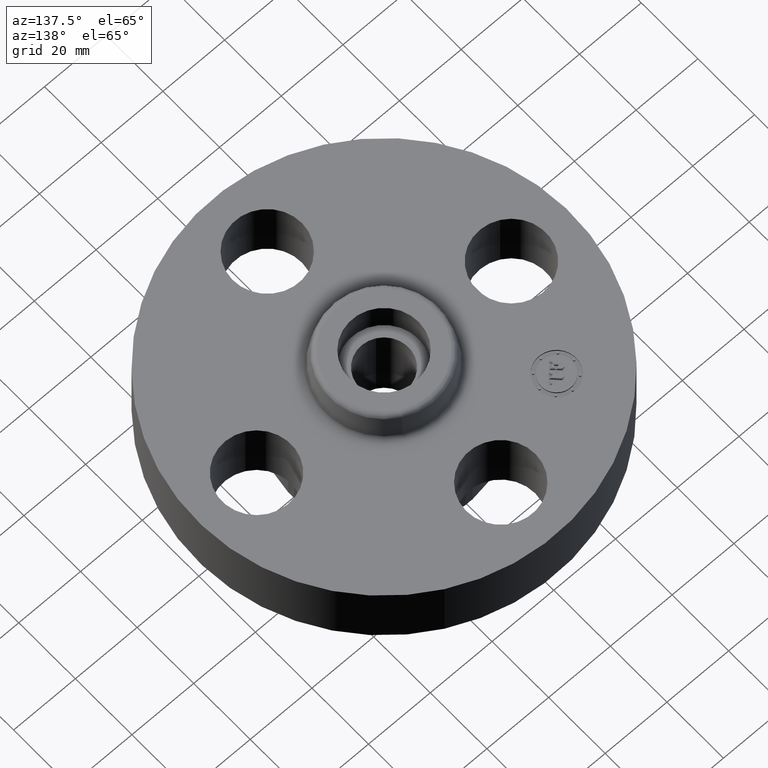
[diagram: clean part render]
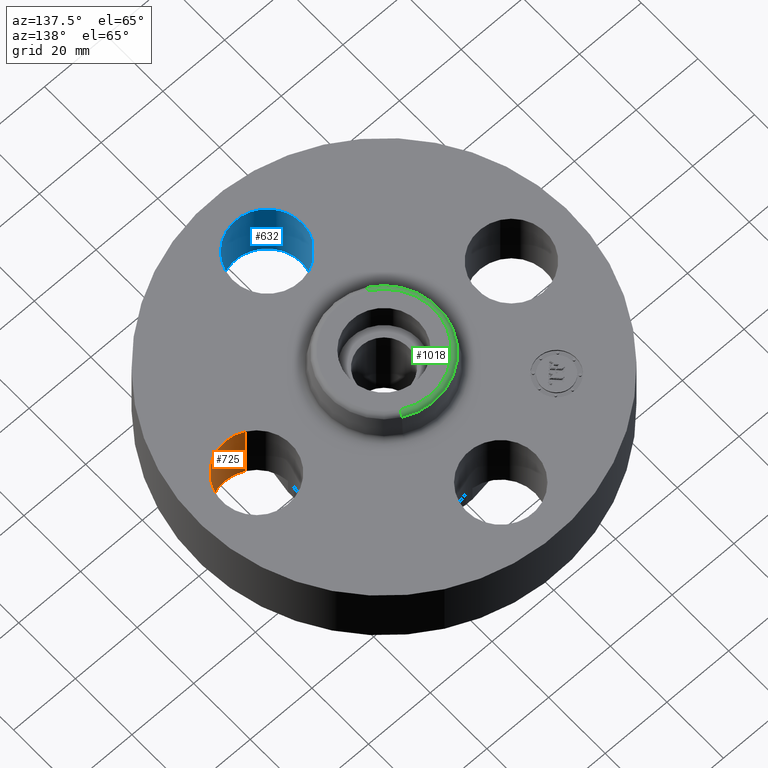
[diagram: same view with three faces highlighted in distinct colors, each labeled with its STEP entity id]
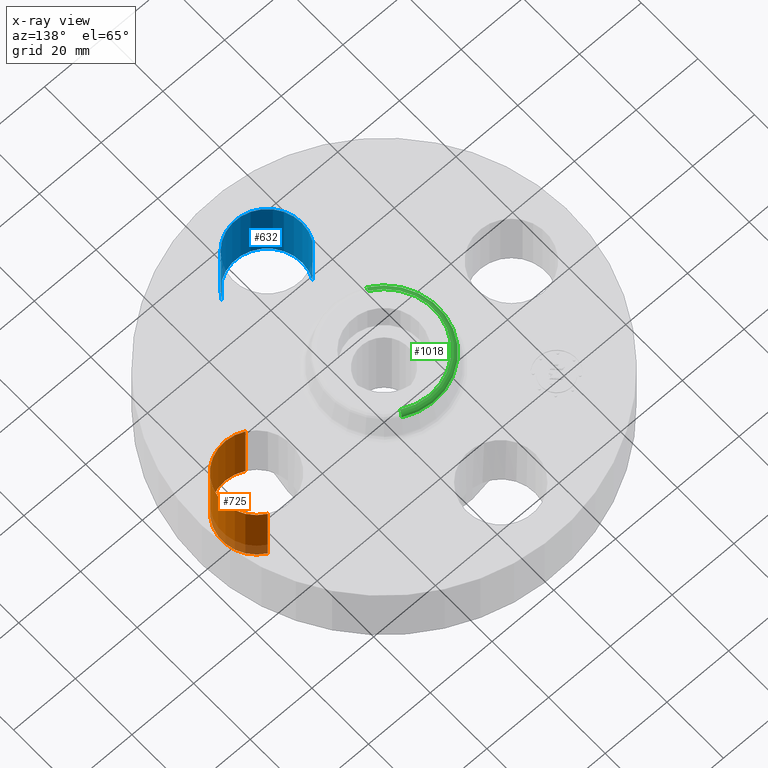
[diagram: x-ray of the same camera — body ghosted, the three highlighted faces saturated]
A machine part, auxiliary view with three faces highlighted in distinct colors.
The next image is the same camera in x-ray (body ghosted, the three faces saturated) — at least one of them is partly hidden behind the body in this view.
Their STEP definitions:

[orange] entity #725 — the highlighted cylindrical surface (partial cylindrical patch) has radius 11.176 mm, axis along (0, -0, -1).
#471=AXIS2_PLACEMENT_3D('Circle Axis2P3D',#469,#470,$) ;
#698=AXIS2_PLACEMENT_3D('Cylinder Axis2P3D',#695,#696,#697) ;
#716=AXIS2_PLACEMENT_3D('Circle Axis2P3D',#714,#715,$) ;
#466=CARTESIAN_POINT('Vertex',(1.41405276302,-0.386136327233,0.)) ;
#469=CARTESIAN_POINT('Axis2P3D Location',(1.62500000001,-2.79741234551E-016,0.)) ;
#473=CARTESIAN_POINT('Vertex',(1.83594723699,0.386136327233,0.)) ;
#695=CARTESIAN_POINT('Axis2P3D Location',(1.62500000001,-1.8023868212E-016,0.87606299213)) ;
#700=CARTESIAN_POINT('Line Origine',(1.83594723699,0.386136327233,0.315000000001)) ;
#704=CARTESIAN_POINT('Vertex',(1.83594723699,0.386136327233,0.880000000004)) ;
#707=CARTESIAN_POINT('Line Origine',(1.41405276302,-0.386136327233,0.315000000001)) ;
#711=CARTESIAN_POINT('Vertex',(1.41405276302,-0.386136327233,0.880000000004)) ;
#714=CARTESIAN_POINT('Axis2P3D Location',(1.62500000001,-1.8023868212E-016,0.880000000004)) ;
#470=DIRECTION('Axis2P3D Direction',(0.,0.,-0.0393700787402)) ;
#696=DIRECTION('Axis2P3D Direction',(0.,-0.,-0.0393700787402)) ;
#697=DIRECTION('Axis2P3D XDirection',(-0.0188750212049,-0.0345504945626,0.)) ;
#701=DIRECTION('Vector Direction',(0.,0.,-0.0393700787402)) ;
#708=DIRECTION('Vector Direction',(0.,0.,-0.0393700787402)) ;
#715=DIRECTION('Axis2P3D Direction',(0.,-0.,-0.0393700787402)) ;
#702=VECTOR('Line Direction',#701,0.0393700787402) ;
#709=VECTOR('Line Direction',#708,0.0393700787402) ;
#720=ORIENTED_EDGE('',*,*,#706,.F.) ;
#721=ORIENTED_EDGE('',*,*,#475,.T.) ;
#722=ORIENTED_EDGE('',*,*,#713,.T.) ;
#723=ORIENTED_EDGE('',*,*,#718,.F.) ;
#725=ADVANCED_FACE('PartBody',(#724),#699,.F.) ;
#472=CIRCLE('generated circle',#471,0.440000000002) ;
#717=CIRCLE('generated circle',#716,0.440000000002) ;
#699=CYLINDRICAL_SURFACE('generated cylinder',#698,0.440000000002) ;
#475=EDGE_CURVE('',#474,#467,#472,.T.) ;
#706=EDGE_CURVE('',#474,#705,#703,.F.) ;
#713=EDGE_CURVE('',#467,#712,#710,.F.) ;
#718=EDGE_CURVE('',#705,#712,#717,.T.) ;
#719=EDGE_LOOP('',(#720,#721,#722,#723)) ;
#724=FACE_OUTER_BOUND('',#719,.T.) ;
#703=LINE('Line',#700,#702) ;
#710=LINE('Line',#707,#709) ;
#467=VERTEX_POINT('',#466) ;
#474=VERTEX_POINT('',#473) ;
#705=VERTEX_POINT('',#704) ;
#712=VERTEX_POINT('',#711) ;

[blue] entity #632 — the highlighted cylindrical surface (partial cylindrical patch) has radius 11.176 mm, axis along (-0, 0, -1).
#528=AXIS2_PLACEMENT_3D('Circle Axis2P3D',#526,#527,$) ;
#605=AXIS2_PLACEMENT_3D('Cylinder Axis2P3D',#602,#603,#604) ;
#623=AXIS2_PLACEMENT_3D('Circle Axis2P3D',#621,#622,$) ;
#523=CARTESIAN_POINT('Vertex',(-0.386136327233,-1.41405276302,0.)) ;
#526=CARTESIAN_POINT('Axis2P3D Location',(2.27289753073E-016,-1.62500000001,0.)) ;
#530=CARTESIAN_POINT('Vertex',(0.386136327233,-1.83594723699,0.)) ;
#602=CARTESIAN_POINT('Axis2P3D Location',(1.99005104862E-016,-1.62500000001,0.87606299213)) ;
#607=CARTESIAN_POINT('Line Origine',(0.386136327233,-1.83594723699,0.315000000001)) ;
#611=CARTESIAN_POINT('Vertex',(0.386136327233,-1.83594723699,0.880000000004)) ;
#614=CARTESIAN_POINT('Line Origine',(-0.386136327233,-1.41405276302,0.315000000001)) ;
#618=CARTESIAN_POINT('Vertex',(-0.386136327233,-1.41405276302,0.880000000004)) ;
#621=CARTESIAN_POINT('Axis2P3D Location',(1.99005104862E-016,-1.62500000001,0.880000000004)) ;
#527=DIRECTION('Axis2P3D Direction',(0.,0.,-0.0393700787402)) ;
#603=DIRECTION('Axis2P3D Direction',(-0.,0.,-0.0393700787402)) ;
#604=DIRECTION('Axis2P3D XDirection',(-0.0345504945626,0.0188750212049,0.)) ;
#608=DIRECTION('Vector Direction',(0.,0.,-0.0393700787402)) ;
#615=DIRECTION('Vector Direction',(0.,0.,-0.0393700787402)) ;
#622=DIRECTION('Axis2P3D Direction',(-0.,0.,-0.0393700787402)) ;
#609=VECTOR('Line Direction',#608,0.0393700787402) ;
#616=VECTOR('Line Direction',#615,0.0393700787402) ;
#627=ORIENTED_EDGE('',*,*,#613,.F.) ;
#628=ORIENTED_EDGE('',*,*,#532,.T.) ;
#629=ORIENTED_EDGE('',*,*,#620,.T.) ;
#630=ORIENTED_EDGE('',*,*,#625,.F.) ;
#632=ADVANCED_FACE('PartBody',(#631),#606,.F.) ;
#529=CIRCLE('generated circle',#528,0.440000000002) ;
#624=CIRCLE('generated circle',#623,0.440000000002) ;
#606=CYLINDRICAL_SURFACE('generated cylinder',#605,0.440000000002) ;
#532=EDGE_CURVE('',#531,#524,#529,.T.) ;
#613=EDGE_CURVE('',#531,#612,#610,.F.) ;
#620=EDGE_CURVE('',#524,#619,#617,.F.) ;
#625=EDGE_CURVE('',#612,#619,#624,.T.) ;
#626=EDGE_LOOP('',(#627,#628,#629,#630)) ;
#631=FACE_OUTER_BOUND('',#626,.T.) ;
#610=LINE('Line',#607,#609) ;
#617=LINE('Line',#614,#616) ;
#524=VERTEX_POINT('',#523) ;
#531=VERTEX_POINT('',#530) ;
#612=VERTEX_POINT('',#611) ;
#619=VERTEX_POINT('',#618) ;

[green] entity #1018 — the highlighted toroidal blend (fillet) surface has major radius 16.1141 mm and minor (blend) radius 1.524 mm.
#923=AXIS2_PLACEMENT_3D('Circle Axis2P3D',#921,#922,$) ;
#979=AXIS2_PLACEMENT_3D('Torus Axis2P3D',#976,#977,#978) ;
#983=AXIS2_PLACEMENT_3D('Circle Axis2P3D',#981,#982,$) ;
#997=AXIS2_PLACEMENT_3D('Circle Axis2P3D',#995,#996,$) ;
#1009=AXIS2_PLACEMENT_3D('Circle Axis2P3D',#1007,#1008,$) ;
#899=CARTESIAN_POINT('Vertex',(0.332482332294,0.608604826951,1.20041889066)) ;
#906=CARTESIAN_POINT('Vertex',(-0.332482332294,-0.608604826951,1.20041889066)) ;
#921=CARTESIAN_POINT('Axis2P3D Location',(0.,0.,1.20041889066)) ;
#976=CARTESIAN_POINT('Axis2P3D Location',(0.,0.,1.19)) ;
#981=CARTESIAN_POINT('Axis2P3D Location',(0.304153813049,0.556749820299,1.19)) ;
#985=CARTESIAN_POINT('Vertex',(0.304153813049,0.556749820299,1.25000000001)) ;
#992=CARTESIAN_POINT('Vertex',(-0.304153813049,-0.556749820299,1.25000000001)) ;
#995=CARTESIAN_POINT('Axis2P3D Location',(-0.304153813049,-0.556749820299,1.19)) ;
#1007=CARTESIAN_POINT('Axis2P3D Location',(0.,0.,1.25000000001)) ;
#922=DIRECTION('Axis2P3D Direction',(0.,0.,-0.0393700787402)) ;
#977=DIRECTION('Axis2P3D Direction',(0.,0.,-0.0393700787402)) ;
#978=DIRECTION('Axis2P3D XDirection',(-0.0188750212049,-0.0345504945626,0.)) ;
#982=DIRECTION('Axis2P3D Direction',(-0.0345504945626,0.0188750212049,0.)) ;
#996=DIRECTION('Axis2P3D Direction',(0.0345504945626,-0.0188750212049,0.)) ;
#1008=DIRECTION('Axis2P3D Direction',(0.,0.,-0.0393700787402)) ;
#1013=ORIENTED_EDGE('',*,*,#925,.F.) ;
#1014=ORIENTED_EDGE('',*,*,#999,.T.) ;
#1015=ORIENTED_EDGE('',*,*,#1011,.T.) ;
#1016=ORIENTED_EDGE('',*,*,#987,.F.) ;
#1018=ADVANCED_FACE('PartBody',(#1017),#980,.T.) ;
#924=CIRCLE('generated circle',#923,0.693501504451) ;
#984=CIRCLE('generated circle',#983,0.0600000000002) ;
#998=CIRCLE('generated circle',#997,0.0600000000002) ;
#1010=CIRCLE('generated circle',#1009,0.63441303927) ;
#980=TOROIDAL_SURFACE('homeo Torus',#979,0.63441303927,0.0600000000002) ;
#925=EDGE_CURVE('',#907,#900,#924,.T.) ;
#987=EDGE_CURVE('',#900,#986,#984,.F.) ;
#999=EDGE_CURVE('',#907,#993,#998,.F.) ;
#1011=EDGE_CURVE('',#993,#986,#1010,.T.) ;
#1012=EDGE_LOOP('',(#1013,#1014,#1015,#1016)) ;
#1017=FACE_OUTER_BOUND('',#1012,.T.) ;
#900=VERTEX_POINT('',#899) ;
#907=VERTEX_POINT('',#906) ;
#986=VERTEX_POINT('',#985) ;
#993=VERTEX_POINT('',#992) ;